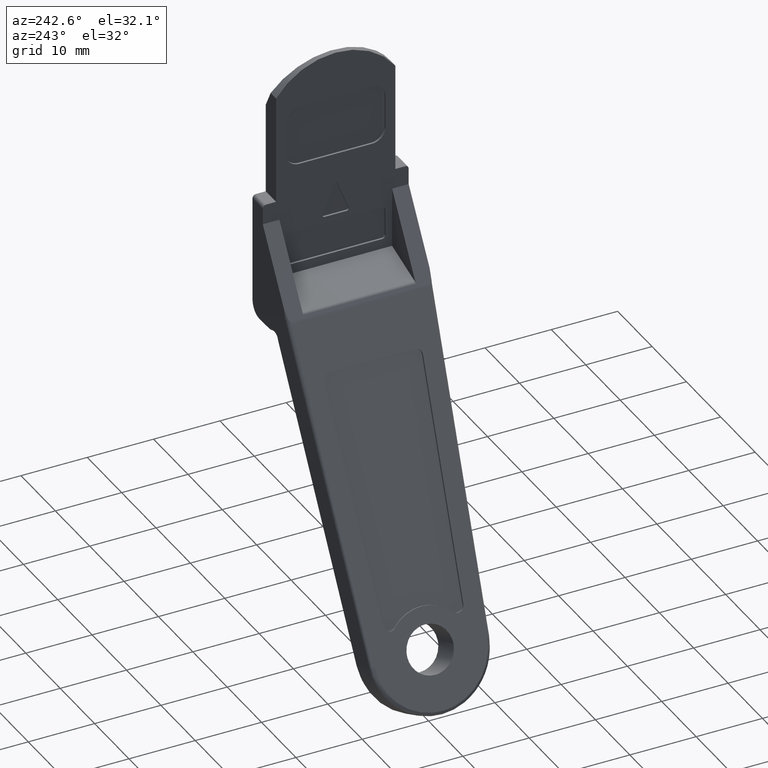
[diagram: clean part render]
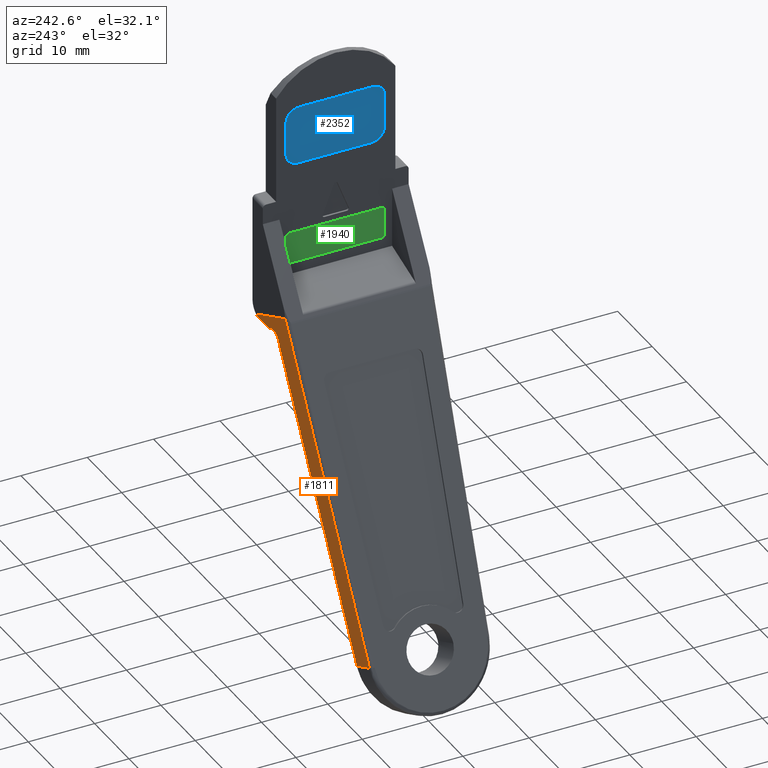
[diagram: same view with three faces highlighted in distinct colors, each labeled with its STEP entity id]
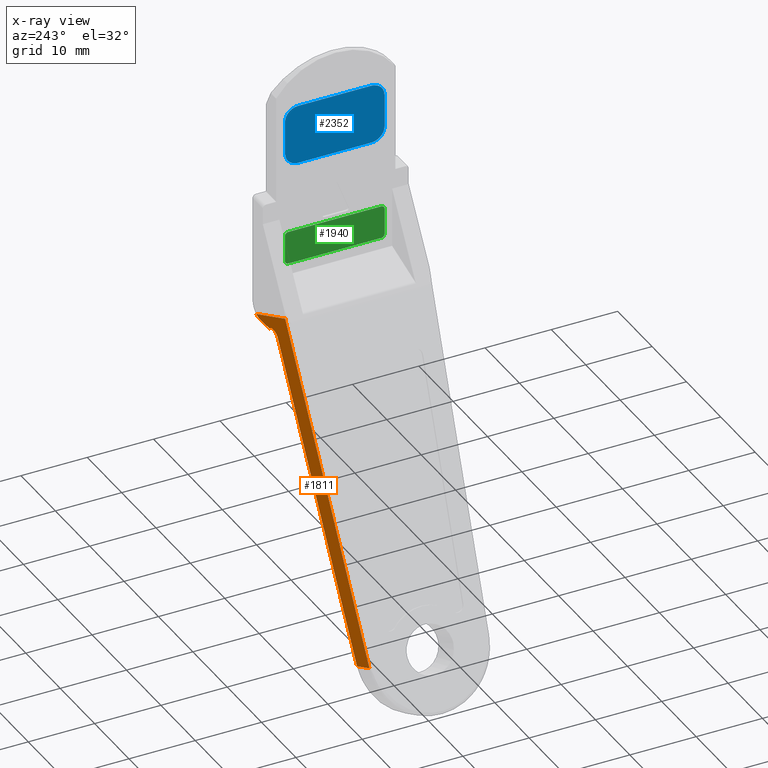
[diagram: x-ray of the same camera — body ghosted, the three highlighted faces saturated]
A machine part, auxiliary view with three faces highlighted in distinct colors.
The next image is the same camera in x-ray (body ghosted, the three faces saturated) — at least one of them is partly hidden behind the body in this view.
Their STEP definitions:

[orange] entity #1811 — the highlighted face is a freeform B-spline surface patch.
#599=CARTESIAN_POINT('',(-4.770462994517900,10.925406928474960,-28.500000000000000));
#600=VERTEX_POINT('',#599);
#633=CARTESIAN_POINT('',(-7.231056569159140,10.868422798514040,-28.884654326272749));
#634=VERTEX_POINT('',#633);
#650=CARTESIAN_POINT('',(-4.770462994517919,10.925406928475001,-28.500000000000039));
#651=CARTESIAN_POINT('',(-5.313365549867601,10.937820376891688,-27.913098374990682));
#652=CARTESIAN_POINT('',(-6.103269839123725,10.919527225977440,-28.036580826612841));
#653=CARTESIAN_POINT('',(-6.893174128379848,10.901234075063186,-28.160063278234993));
#654=CARTESIAN_POINT('',(-7.231056569159140,10.868422798514040,-28.884654326272749));
#662=(BOUNDED_CURVE()B_SPLINE_CURVE(2,(#650,#651,#652,#653,#654),.UNSPECIFIED.,.F.,.U.)B_SPLINE_CURVE_WITH_KNOTS((3,2,3),(0.0,0.500000000000000,1.0),.UNSPECIFIED.)CURVE()GEOMETRIC_REPRESENTATION_ITEM()RATIONAL_B_SPLINE_CURVE((1.0,0.882475595174610,1.0,0.882475595174610,1.0))REPRESENTATION_ITEM(''));
#663=EDGE_CURVE('',#600,#634,#662,.T.);
#684=CARTESIAN_POINT('',(-26.549560239542050,8.992430345389840,-70.313319929517704));
#685=VERTEX_POINT('',#684);
#701=CARTESIAN_POINT('',(-7.231056569159140,10.868422798514040,-28.884654326272749));
#702=CARTESIAN_POINT('',(-26.549560239542050,8.992430345389840,-70.313319929517704));
#703=QUASI_UNIFORM_CURVE('',1,(#701,#702),.UNSPECIFIED.,.F.,.U.);
#704=EDGE_CURVE('',#634,#685,#703,.T.);
#1033=CARTESIAN_POINT('',(-9.505668854601300,10.999579463651500,-24.297770135474401));
#1034=VERTEX_POINT('',#1033);
#1055=CARTESIAN_POINT('',(-1.030990731033812,10.999579463651580,-28.249577388016199));
#1056=VERTEX_POINT('',#1055);
#1064=CARTESIAN_POINT('',(-9.505668854601300,10.999579463651500,-24.297770135474401));
#1065=CARTESIAN_POINT('',(-1.030990731033812,10.999579463651580,-28.249577388016199));
#1066=QUASI_UNIFORM_CURVE('',1,(#1064,#1065),.UNSPECIFIED.,.F.,.U.);
#1067=EDGE_CURVE('',#1034,#1056,#1066,.T.);
#1157=CARTESIAN_POINT('',(-30.174791318896350,8.992430345389840,-68.622846938963306));
#1158=VERTEX_POINT('',#1157);
#1159=CARTESIAN_POINT('',(-30.174791318896350,8.992430345389840,-68.622846938963306));
#1160=CARTESIAN_POINT('',(-9.505668854601300,10.999579463651500,-24.297770135474401));
#1161=QUASI_UNIFORM_CURVE('',1,(#1159,#1160),.UNSPECIFIED.,.F.,.U.);
#1162=EDGE_CURVE('',#1158,#1034,#1161,.T.);
#1764=CARTESIAN_POINT('',(-30.174791318896350,8.992430345389840,-68.622846938963306));
#1765=CARTESIAN_POINT('',(-26.549560239542050,8.992430345389840,-70.313319929517704));
#1766=QUASI_UNIFORM_CURVE('',1,(#1764,#1765),.UNSPECIFIED.,.F.,.U.);
#1767=EDGE_CURVE('',#1158,#685,#1766,.T.);
#1779=CARTESIAN_POINT('',(-31.630524101773741,10.701883516060320,-21.984491050488071));
#1780=CARTESIAN_POINT('',(-31.630524101773741,8.818915306765751,-72.609069558216362));
#1781=CARTESIAN_POINT('',(0.424742833541226,11.257088169877330,-22.005141745142851));
#1782=CARTESIAN_POINT('',(0.424742833541226,9.374119960582766,-72.629720252871152));
#1783=B_SPLINE_SURFACE_WITH_KNOTS('',1,1,((#1779,#1781),(#1780,#1782)),.UNSPECIFIED.,.F.,.F.,.U.,(2,2),(2,2),(0.0,50.659584664329422),(0.0,32.060081362234683),.UNSPECIFIED.);
#1784=ORIENTED_EDGE('',*,*,#1162,.T.);
#1785=ORIENTED_EDGE('',*,*,#1067,.T.);
#1786=CARTESIAN_POINT('',(-2.000000000000200,10.973458374622920,-28.500000000000000));
#1787=VERTEX_POINT('',#1786);
#1788=CARTESIAN_POINT('',(-2.000000000000214,10.973458374623011,-28.500000000000000));
#1789=CARTESIAN_POINT('',(-1.483136807863784,10.982422949819270,-28.500000000000000));
#1790=CARTESIAN_POINT('',(-1.030990731033912,10.999579463651569,-28.249577388016149));
#1798=(BOUNDED_CURVE()B_SPLINE_CURVE(2,(#1788,#1789,#1790),.UNSPECIFIED.,.F.,.U.)CURVE()GEOMETRIC_REPRESENTATION_ITEM()QUASI_UNIFORM_CURVE()RATIONAL_B_SPLINE_CURVE((1.0,0.968191276042105,1.0))REPRESENTATION_ITEM(''));
#1799=EDGE_CURVE('',#1787,#1056,#1798,.T.);
#1800=ORIENTED_EDGE('',*,*,#1799,.F.);
#1801=CARTESIAN_POINT('',(-2.000000000000200,10.973458374622920,-28.500000000000000));
#1802=CARTESIAN_POINT('',(-4.770462994517900,10.925406928474960,-28.500000000000000));
#1803=QUASI_UNIFORM_CURVE('',1,(#1801,#1802),.UNSPECIFIED.,.F.,.U.);
#1804=EDGE_CURVE('',#1787,#600,#1803,.T.);
#1805=ORIENTED_EDGE('',*,*,#1804,.T.);
#1806=ORIENTED_EDGE('',*,*,#663,.T.);
#1807=ORIENTED_EDGE('',*,*,#704,.T.);
#1808=ORIENTED_EDGE('',*,*,#1767,.F.);
#1809=EDGE_LOOP('',(#1784,#1785,#1800,#1805,#1806,#1807,#1808));
#1810=FACE_OUTER_BOUND('',#1809,.T.);
#1811=ADVANCED_FACE('',(#1810),#1783,.F.);

[blue] entity #2352 — the highlighted face is a freeform B-spline surface patch.
#2257=CARTESIAN_POINT('',(-2.700000000000200,8.249249970927089,4.449549982556258));
#2258=CARTESIAN_POINT('',(-2.700000000000200,-8.249250373258443,4.449549982556258));
#2259=CARTESIAN_POINT('',(-2.700000000000200,8.249249970927089,-5.449550223955160));
#2260=CARTESIAN_POINT('',(-2.700000000000200,-8.249250373258443,-5.449550223955160));
#2261=B_SPLINE_SURFACE_WITH_KNOTS('',1,1,((#2257,#2259),(#2258,#2260)),.UNSPECIFIED.,.F.,.F.,.U.,(2,2),(2,2),(0.0,16.498500344185530),(0.0,9.899100206511417),.UNSPECIFIED.);
#2262=CARTESIAN_POINT('',(-2.700000000000145,7.500000000000000,-3.000000000000085));
#2263=VERTEX_POINT('',#2262);
#2264=CARTESIAN_POINT('',(-2.700000000000145,7.500000000000000,1.999999999999915));
#2265=VERTEX_POINT('',#2264);
#2266=CARTESIAN_POINT('',(-2.700000000000145,7.500000000000000,-3.000000000000085));
#2267=CARTESIAN_POINT('',(-2.700000000000145,7.500000000000000,1.999999999999915));
#2268=QUASI_UNIFORM_CURVE('',1,(#2266,#2267),.UNSPECIFIED.,.F.,.U.);
#2269=EDGE_CURVE('',#2263,#2265,#2268,.T.);
#2270=ORIENTED_EDGE('',*,*,#2269,.F.);
#2271=CARTESIAN_POINT('',(-2.700000000000145,5.500000000000000,-5.000000000000091));
#2272=VERTEX_POINT('',#2271);
#2273=CARTESIAN_POINT('',(-2.700000000000145,7.500000000000000,-3.000000000000085));
#2274=CARTESIAN_POINT('',(-2.700000000000145,7.500000000000000,-5.000000000000085));
#2275=CARTESIAN_POINT('',(-2.700000000000145,5.500000000000000,-5.000000000000085));
#2283=(BOUNDED_CURVE()B_SPLINE_CURVE(2,(#2273,#2274,#2275),.UNSPECIFIED.,.F.,.U.)CURVE()GEOMETRIC_REPRESENTATION_ITEM()QUASI_UNIFORM_CURVE()RATIONAL_B_SPLINE_CURVE((1.0,0.707106781186548,1.0))REPRESENTATION_ITEM(''));
#2284=EDGE_CURVE('',#2263,#2272,#2283,.T.);
#2285=ORIENTED_EDGE('',*,*,#2284,.T.);
#2286=CARTESIAN_POINT('',(-2.700000000000145,-5.500000000000000,-5.000000000000080));
#2287=VERTEX_POINT('',#2286);
#2288=CARTESIAN_POINT('',(-2.700000000000145,-5.500000000000000,-5.000000000000080));
#2289=CARTESIAN_POINT('',(-2.700000000000145,5.500000000000000,-5.000000000000091));
#2290=QUASI_UNIFORM_CURVE('',1,(#2288,#2289),.UNSPECIFIED.,.F.,.U.);
#2291=EDGE_CURVE('',#2287,#2272,#2290,.T.);
#2292=ORIENTED_EDGE('',*,*,#2291,.F.);
#2293=CARTESIAN_POINT('',(-2.700000000000145,-7.500000000000000,-3.000000000000085));
#2294=VERTEX_POINT('',#2293);
#2295=CARTESIAN_POINT('',(-2.700000000000145,-5.500000000000000,-5.000000000000085));
#2296=CARTESIAN_POINT('',(-2.700000000000145,-7.500000000000000,-5.000000000000085));
#2297=CARTESIAN_POINT('',(-2.700000000000145,-7.500000000000000,-3.000000000000085));
#2305=(BOUNDED_CURVE()B_SPLINE_CURVE(2,(#2295,#2296,#2297),.UNSPECIFIED.,.F.,.U.)CURVE()GEOMETRIC_REPRESENTATION_ITEM()QUASI_UNIFORM_CURVE()RATIONAL_B_SPLINE_CURVE((1.0,0.707106781186548,1.0))REPRESENTATION_ITEM(''));
#2306=EDGE_CURVE('',#2287,#2294,#2305,.T.);
#2307=ORIENTED_EDGE('',*,*,#2306,.T.);
#2308=CARTESIAN_POINT('',(-2.700000000000145,-7.500000000000000,1.999999999999915));
#2309=VERTEX_POINT('',#2308);
#2310=CARTESIAN_POINT('',(-2.700000000000145,-7.500000000000000,1.999999999999915));
#2311=CARTESIAN_POINT('',(-2.700000000000145,-7.500000000000000,-3.000000000000085));
#2312=QUASI_UNIFORM_CURVE('',1,(#2310,#2311),.UNSPECIFIED.,.F.,.U.);
#2313=EDGE_CURVE('',#2309,#2294,#2312,.T.);
#2314=ORIENTED_EDGE('',*,*,#2313,.F.);
#2315=CARTESIAN_POINT('',(-2.700000000000145,-5.500000000000000,4.0));
#2316=VERTEX_POINT('',#2315);
#2317=CARTESIAN_POINT('',(-2.700000000000145,-7.500000000000000,1.999999999999915));
#2318=CARTESIAN_POINT('',(-2.700000000000145,-7.500000000000000,3.999999999999915));
#2319=CARTESIAN_POINT('',(-2.700000000000145,-5.500000000000000,4.0));
#2327=(BOUNDED_CURVE()B_SPLINE_CURVE(2,(#2317,#2318,#2319),.UNSPECIFIED.,.F.,.U.)CURVE()GEOMETRIC_REPRESENTATION_ITEM()QUASI_UNIFORM_CURVE()RATIONAL_B_SPLINE_CURVE((1.0,0.707106781186548,1.0))REPRESENTATION_ITEM(''));
#2328=EDGE_CURVE('',#2309,#2316,#2327,.T.);
#2329=ORIENTED_EDGE('',*,*,#2328,.T.);
#2330=CARTESIAN_POINT('',(-2.700000000000145,5.500000000000000,3.999999999999915));
#2331=VERTEX_POINT('',#2330);
#2332=CARTESIAN_POINT('',(-2.700000000000145,5.500000000000000,3.999999999999915));
#2333=CARTESIAN_POINT('',(-2.700000000000145,-5.500000000000000,4.0));
#2334=QUASI_UNIFORM_CURVE('',1,(#2332,#2333),.UNSPECIFIED.,.F.,.U.);
#2335=EDGE_CURVE('',#2331,#2316,#2334,.T.);
#2336=ORIENTED_EDGE('',*,*,#2335,.F.);
#2337=CARTESIAN_POINT('',(-2.700000000000145,5.500000000000000,3.999999999999915));
#2338=CARTESIAN_POINT('',(-2.700000000000145,7.500000000000000,3.999999999999915));
#2339=CARTESIAN_POINT('',(-2.700000000000145,7.500000000000000,1.999999999999915));
#2347=(BOUNDED_CURVE()B_SPLINE_CURVE(2,(#2337,#2338,#2339),.UNSPECIFIED.,.F.,.U.)CURVE()GEOMETRIC_REPRESENTATION_ITEM()QUASI_UNIFORM_CURVE()RATIONAL_B_SPLINE_CURVE((1.0,0.707106781186548,1.0))REPRESENTATION_ITEM(''));
#2348=EDGE_CURVE('',#2331,#2265,#2347,.T.);
#2349=ORIENTED_EDGE('',*,*,#2348,.T.);
#2350=EDGE_LOOP('',(#2270,#2285,#2292,#2307,#2314,#2329,#2336,#2349));
#2351=FACE_OUTER_BOUND('',#2350,.T.);
#2352=ADVANCED_FACE('',(#2351),#2261,.F.);

[green] entity #1940 — the highlighted face is a freeform B-spline surface patch.
#1845=CARTESIAN_POINT('',(-2.700000000000200,8.249249970927089,-15.250250009690969));
#1846=CARTESIAN_POINT('',(-2.700000000000200,-8.249250373258443,-15.250250009690969));
#1847=CARTESIAN_POINT('',(-2.700000000000200,8.249249970927089,-20.749750124419489));
#1848=CARTESIAN_POINT('',(-2.700000000000200,-8.249250373258443,-20.749750124419489));
#1849=B_SPLINE_SURFACE_WITH_KNOTS('',1,1,((#1845,#1847),(#1846,#1848)),.UNSPECIFIED.,.F.,.F.,.U.,(2,2),(2,2),(0.0,16.498500344185530),(0.0,5.499500114728518),.UNSPECIFIED.);
#1850=CARTESIAN_POINT('',(-2.700000000000145,-7.0,-15.500000000000000));
#1851=VERTEX_POINT('',#1850);
#1852=CARTESIAN_POINT('',(-2.700000000000145,7.0,-15.500000000000000));
#1853=VERTEX_POINT('',#1852);
#1854=CARTESIAN_POINT('',(-2.700000000000145,-7.0,-15.500000000000000));
#1855=CARTESIAN_POINT('',(-2.700000000000145,7.0,-15.500000000000000));
#1856=QUASI_UNIFORM_CURVE('',1,(#1854,#1855),.UNSPECIFIED.,.F.,.U.);
#1857=EDGE_CURVE('',#1851,#1853,#1856,.T.);
#1858=ORIENTED_EDGE('',*,*,#1857,.T.);
#1859=CARTESIAN_POINT('',(-2.700000000000145,7.500000000000000,-16.0));
#1860=VERTEX_POINT('',#1859);
#1861=CARTESIAN_POINT('',(-2.700000000000145,7.0,-15.500000000000000));
#1862=CARTESIAN_POINT('',(-2.700000000000145,7.500000000000000,-15.500000000000004));
#1863=CARTESIAN_POINT('',(-2.700000000000145,7.500000000000000,-16.0));
#1871=(BOUNDED_CURVE()B_SPLINE_CURVE(2,(#1861,#1862,#1863),.UNSPECIFIED.,.F.,.U.)CURVE()GEOMETRIC_REPRESENTATION_ITEM()QUASI_UNIFORM_CURVE()RATIONAL_B_SPLINE_CURVE((1.0,0.707106781186548,1.0))REPRESENTATION_ITEM(''));
#1872=EDGE_CURVE('',#1853,#1860,#1871,.T.);
#1873=ORIENTED_EDGE('',*,*,#1872,.T.);
#1874=CARTESIAN_POINT('',(-2.700000000000145,7.500000000000000,-20.0));
#1875=VERTEX_POINT('',#1874);
#1876=CARTESIAN_POINT('',(-2.700000000000145,7.500000000000000,-16.0));
#1877=CARTESIAN_POINT('',(-2.700000000000145,7.500000000000000,-20.0));
#1878=QUASI_UNIFORM_CURVE('',1,(#1876,#1877),.UNSPECIFIED.,.F.,.U.);
#1879=EDGE_CURVE('',#1860,#1875,#1878,.T.);
#1880=ORIENTED_EDGE('',*,*,#1879,.T.);
#1881=CARTESIAN_POINT('',(-2.700000000000145,7.0,-20.500000000000000));
#1882=VERTEX_POINT('',#1881);
#1883=CARTESIAN_POINT('',(-2.700000000000145,7.500000000000000,-20.0));
#1884=CARTESIAN_POINT('',(-2.700000000000145,7.500000000000000,-20.500000000000007));
#1885=CARTESIAN_POINT('',(-2.700000000000145,7.0,-20.500000000000000));
#1893=(BOUNDED_CURVE()B_SPLINE_CURVE(2,(#1883,#1884,#1885),.UNSPECIFIED.,.F.,.U.)CURVE()GEOMETRIC_REPRESENTATION_ITEM()QUASI_UNIFORM_CURVE()RATIONAL_B_SPLINE_CURVE((1.0,0.707106781186548,1.0))REPRESENTATION_ITEM(''));
#1894=EDGE_CURVE('',#1875,#1882,#1893,.T.);
#1895=ORIENTED_EDGE('',*,*,#1894,.T.);
#1896=CARTESIAN_POINT('',(-2.700000000000145,-7.0,-20.500000000000000));
#1897=VERTEX_POINT('',#1896);
#1898=CARTESIAN_POINT('',(-2.700000000000145,7.0,-20.500000000000000));
#1899=CARTESIAN_POINT('',(-2.700000000000145,-7.0,-20.500000000000000));
#1900=QUASI_UNIFORM_CURVE('',1,(#1898,#1899),.UNSPECIFIED.,.F.,.U.);
#1901=EDGE_CURVE('',#1882,#1897,#1900,.T.);
#1902=ORIENTED_EDGE('',*,*,#1901,.T.);
#1903=CARTESIAN_POINT('',(-2.700000000000145,-7.500000000000000,-20.0));
#1904=VERTEX_POINT('',#1903);
#1905=CARTESIAN_POINT('',(-2.700000000000145,-7.0,-20.500000000000000));
#1906=CARTESIAN_POINT('',(-2.700000000000145,-7.500000000000000,-20.500000000000007));
#1907=CARTESIAN_POINT('',(-2.700000000000145,-7.500000000000000,-20.0));
#1915=(BOUNDED_CURVE()B_SPLINE_CURVE(2,(#1905,#1906,#1907),.UNSPECIFIED.,.F.,.U.)CURVE()GEOMETRIC_REPRESENTATION_ITEM()QUASI_UNIFORM_CURVE()RATIONAL_B_SPLINE_CURVE((1.0,0.707106781186548,1.0))REPRESENTATION_ITEM(''));
#1916=EDGE_CURVE('',#1897,#1904,#1915,.T.);
#1917=ORIENTED_EDGE('',*,*,#1916,.T.);
#1918=CARTESIAN_POINT('',(-2.700000000000145,-7.500000000000000,-16.0));
#1919=VERTEX_POINT('',#1918);
#1920=CARTESIAN_POINT('',(-2.700000000000145,-7.500000000000000,-20.0));
#1921=CARTESIAN_POINT('',(-2.700000000000145,-7.500000000000000,-16.0));
#1922=QUASI_UNIFORM_CURVE('',1,(#1920,#1921),.UNSPECIFIED.,.F.,.U.);
#1923=EDGE_CURVE('',#1904,#1919,#1922,.T.);
#1924=ORIENTED_EDGE('',*,*,#1923,.T.);
#1925=CARTESIAN_POINT('',(-2.700000000000145,-7.500000000000000,-16.0));
#1926=CARTESIAN_POINT('',(-2.700000000000145,-7.500000000000000,-15.500000000000004));
#1927=CARTESIAN_POINT('',(-2.700000000000145,-7.0,-15.500000000000000));
#1935=(BOUNDED_CURVE()B_SPLINE_CURVE(2,(#1925,#1926,#1927),.UNSPECIFIED.,.F.,.U.)CURVE()GEOMETRIC_REPRESENTATION_ITEM()QUASI_UNIFORM_CURVE()RATIONAL_B_SPLINE_CURVE((1.0,0.707106781186548,1.0))REPRESENTATION_ITEM(''));
#1936=EDGE_CURVE('',#1919,#1851,#1935,.T.);
#1937=ORIENTED_EDGE('',*,*,#1936,.T.);
#1938=EDGE_LOOP('',(#1858,#1873,#1880,#1895,#1902,#1917,#1924,#1937));
#1939=FACE_OUTER_BOUND('',#1938,.T.);
#1940=ADVANCED_FACE('',(#1939),#1849,.F.);